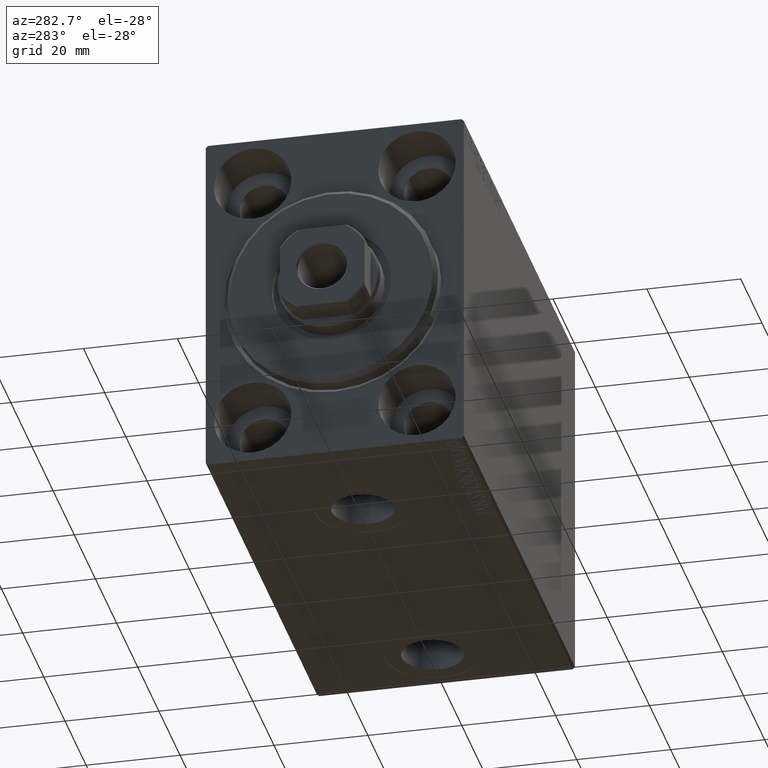
[diagram: clean part render]
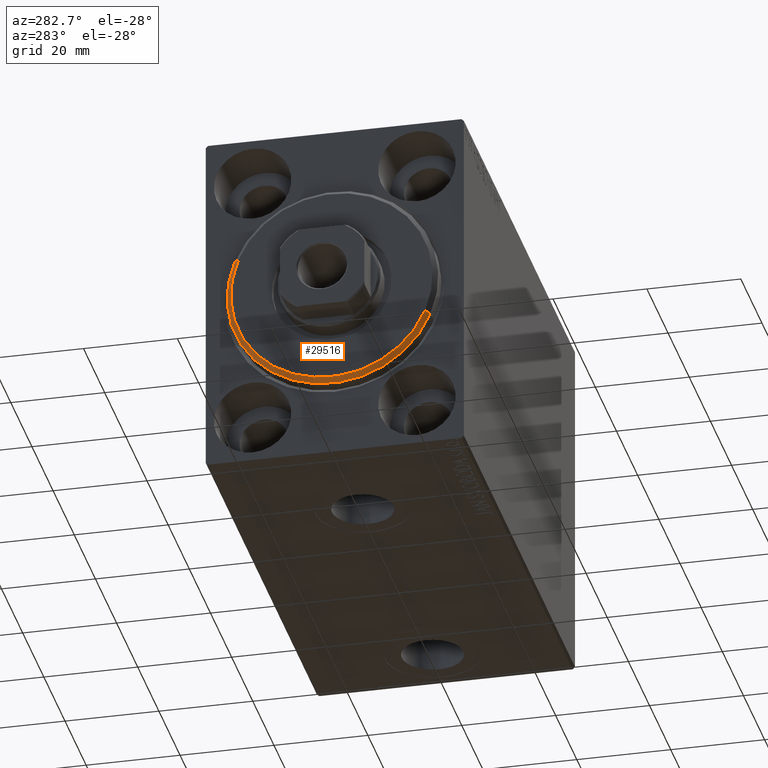
[diagram: same view with one face highlighted and labeled with its STEP entity id]
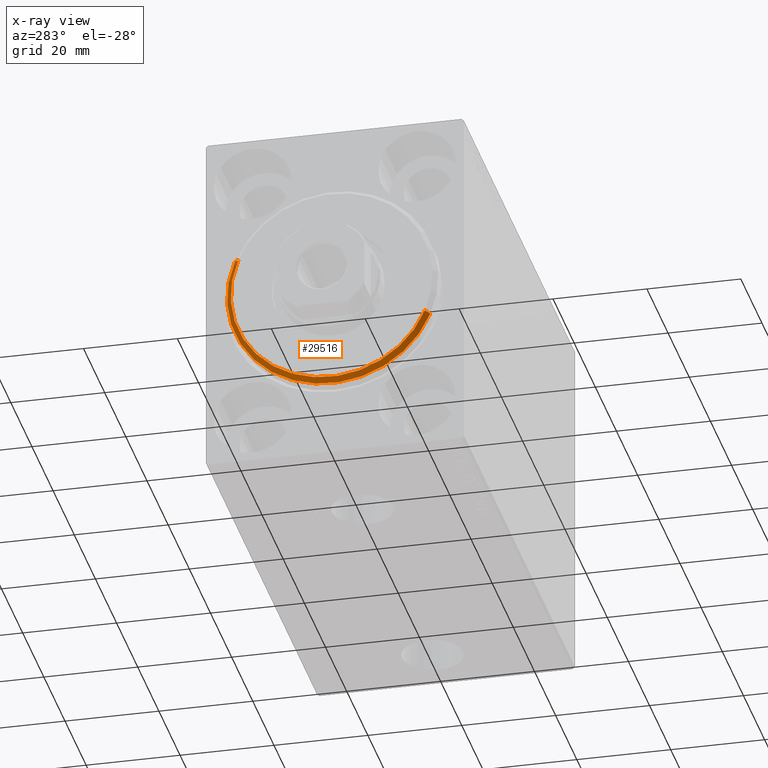
[diagram: x-ray of the same camera — body ghosted, the highlighted face saturated]
A machine part, auxiliary view. The second image highlights one B-rep face of the part: STEP entity #29516.
The next image is the same camera in x-ray: the body ghosted, the highlighted face saturated — about 0% of this face is hidden behind the body in this view.
In plain terms, the highlighted conical surface has half-angle 45 deg.
Its self-contained STEP definition (entity closure, byte-faithful):
#801 = CARTESIAN_POINT ( 'NONE',  ( 3.000000000000000000, 2.694222958124177598E-15, -21.50000000000000355 ) ) ;
#1015 = CARTESIAN_POINT ( 'NONE',  ( 1.999999999999999112, 2.755455298081545172E-15, -22.50000000000000355 ) ) ;
#1835 = AXIS2_PLACEMENT_3D ( 'NONE', #10319, #7318, #10760 ) ;
#3431 = DIRECTION ( 'NONE',  ( -0.7071067811865487940, 8.659560562354919300E-17, -0.7071067811865463515 ) ) ;
#5561 = DIRECTION ( 'NONE',  ( -1.000000000000000000, 0.000000000000000000, 0.000000000000000000 ) ) ;
#5604 = CARTESIAN_POINT ( 'NONE',  ( 3.000000000000000000, 0.000000000000000000, 21.50000000000000355 ) ) ;
#6667 = LINE ( 'NONE', #5604, #25168 ) ;
#7318 = DIRECTION ( 'NONE',  ( -1.000000000000000000, 0.000000000000000000, 0.000000000000000000 ) ) ;
#7360 = EDGE_CURVE ( 'NONE', #13683, #31063, #10640, .T. ) ;
#10181 = EDGE_LOOP ( 'NONE', ( #17692, #33245, #29578, #44556 ) ) ;
#10305 = LINE ( 'NONE', #27438, #25506 ) ;
#10319 = CARTESIAN_POINT ( 'NONE',  ( 1.999999999999999112, 0.000000000000000000, 0.000000000000000000 ) ) ;
#10640 = CIRCLE ( 'NONE', #16494, 21.50000000000000355 ) ;
#10760 = DIRECTION ( 'NONE',  ( 0.000000000000000000, 0.000000000000000000, -1.000000000000000000 ) ) ;
#13683 = VERTEX_POINT ( 'NONE', #801 ) ;
#16299 = EDGE_CURVE ( 'NONE', #13683, #17240, #10305, .T. ) ;
#16319 = DIRECTION ( 'NONE',  ( 0.000000000000000000, 0.000000000000000000, 1.000000000000000000 ) ) ;
#16494 = AXIS2_PLACEMENT_3D ( 'NONE', #24856, #27836, #20313 ) ;
#17240 = VERTEX_POINT ( 'NONE', #1015 ) ;
#17692 = ORIENTED_EDGE ( 'NONE', *, *, #7360, .F. ) ;
#19560 = DIRECTION ( 'NONE',  ( -0.7071067811865487940, 0.000000000000000000, 0.7071067811865463515 ) ) ;
#20313 = DIRECTION ( 'NONE',  ( 0.000000000000000000, 0.000000000000000000, -1.000000000000000000 ) ) ;
#22484 = CARTESIAN_POINT ( 'NONE',  ( 3.000000000000000000, 0.000000000000000000, 0.000000000000000000 ) ) ;
#24856 = CARTESIAN_POINT ( 'NONE',  ( 3.000000000000000000, 0.000000000000000000, 0.000000000000000000 ) ) ;
#25168 = VECTOR ( 'NONE', #19560, 1000.000000000000000 ) ;
#25506 = VECTOR ( 'NONE', #3431, 1000.000000000000000 ) ;
#26587 = FACE_OUTER_BOUND ( 'NONE', #10181, .T. ) ;
#27438 = CARTESIAN_POINT ( 'NONE',  ( 3.000000000000000000, 2.632990618166810024E-15, -21.50000000000000355 ) ) ;
#27836 = DIRECTION ( 'NONE',  ( 1.000000000000000000, -0.000000000000000000, 0.000000000000000000 ) ) ;
#29516 = ADVANCED_FACE ( 'NONE', ( #26587 ), #39672, .T. ) ;
#29578 = ORIENTED_EDGE ( 'NONE', *, *, #39071, .F. ) ;
#30270 = CIRCLE ( 'NONE', #1835, 22.50000000000000355 ) ;
#30729 = VERTEX_POINT ( 'NONE', #42054 ) ;
#31063 = VERTEX_POINT ( 'NONE', #44031 ) ;
#31627 = AXIS2_PLACEMENT_3D ( 'NONE', #22484, #5561, #16319 ) ;
#33245 = ORIENTED_EDGE ( 'NONE', *, *, #16299, .T. ) ;
#39071 = EDGE_CURVE ( 'NONE', #30729, #17240, #30270, .T. ) ;
#39672 = CONICAL_SURFACE ( 'NONE', #31627, 21.50000000000000355, 0.7853981633974466137 ) ;
#39697 = EDGE_CURVE ( 'NONE', #31063, #30729, #6667, .T. ) ;
#42054 = CARTESIAN_POINT ( 'NONE',  ( 1.999999999999999112, 0.000000000000000000, 22.50000000000000355 ) ) ;
#44031 = CARTESIAN_POINT ( 'NONE',  ( 3.000000000000000000, 0.000000000000000000, 21.50000000000000355 ) ) ;
#44556 = ORIENTED_EDGE ( 'NONE', *, *, #39697, .F. ) ;